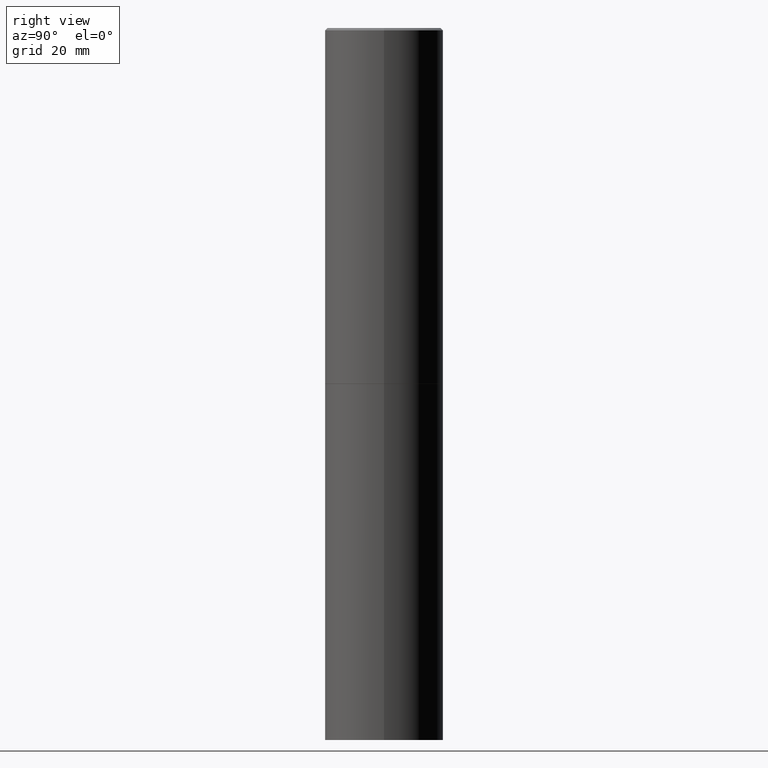
[diagram: clean part render]
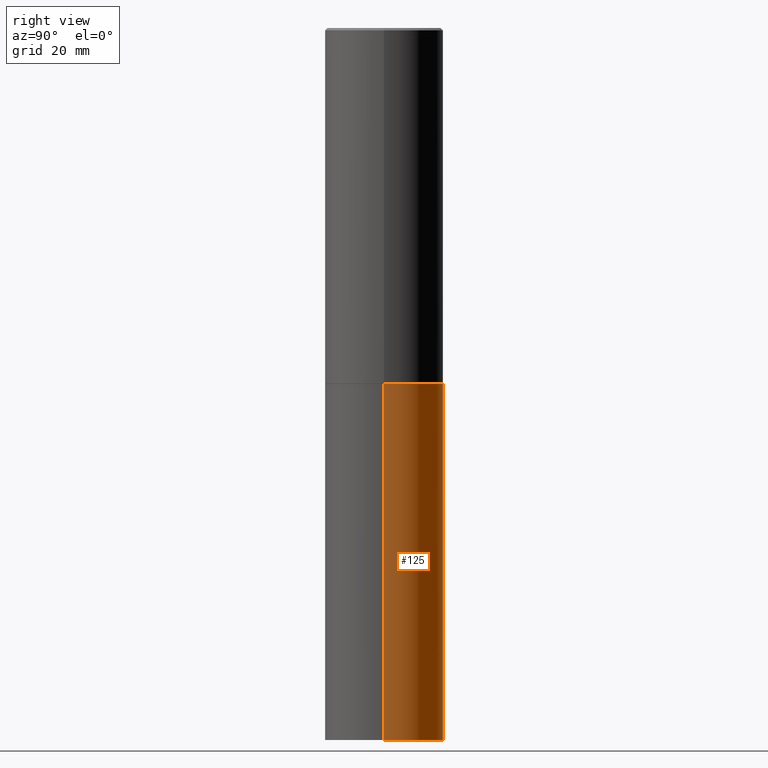
[diagram: same view with one face highlighted and labeled with its STEP entity id]
A machine part, right view. The second image highlights one B-rep face of the part: STEP entity #125.
In plain terms, the highlighted cylindrical surface (partial cylindrical patch) has radius 12.7 mm, axis along (-0, 0, 1).
Its self-contained STEP definition (entity closure, byte-faithful):
#8 = FACE_OUTER_BOUND ( 'NONE', #22, .T. ) ;
#12 = DIRECTION ( 'NONE',  ( -2.445468806185136877E-29, 3.491481338843145188E-15, 1.000000000000000000 ) ) ;
#22 = EDGE_LOOP ( 'NONE', ( #310, #163, #74, #138 ) ) ;
#29 = CARTESIAN_POINT ( 'NONE',  ( -0.5000000000000000000, -1.215895234599365439E-14, -6.000000000000000888 ) ) ;
#33 = CARTESIAN_POINT ( 'NONE',  ( 7.336406418555409790E-29, -1.047444401652943635E-14, -3.000000000000000444 ) ) ;
#35 = EDGE_CURVE ( 'NONE', #325, #143, #69, .T. ) ;
#39 = EDGE_CURVE ( 'NONE', #52, #143, #84, .T. ) ;
#40 = DIRECTION ( 'NONE',  ( 1.000000000000000000, -6.982962677686266711E-15, 4.876176775795935793E-29 ) ) ;
#49 = VECTOR ( 'NONE', #177, 39.37007874015748143 ) ;
#52 = VERTEX_POINT ( 'NONE', #29 ) ;
#61 = CIRCLE ( 'NONE', #116, 0.5000000000000000000 ) ;
#67 = CARTESIAN_POINT ( 'NONE',  ( 0.5000000000000000000, -3.491481338843133355E-15, 2.438088387897967896E-29 ) ) ;
#69 = CIRCLE ( 'NONE', #168, 0.5000000000000000000 ) ;
#74 = ORIENTED_EDGE ( 'NONE', *, *, #35, .F. ) ;
#84 = LINE ( 'NONE', #180, #49 ) ;
#85 = DIRECTION ( 'NONE',  ( 1.000000000000000000, -6.982962677686266711E-15, 0.000000000000000000 ) ) ;
#98 = CARTESIAN_POINT ( 'NONE',  ( -0.5000000000000000000, -1.215895234599365439E-14, -3.000000000000000444 ) ) ;
#99 = VECTOR ( 'NONE', #12, 39.37007874015748143 ) ;
#116 = AXIS2_PLACEMENT_3D ( 'NONE', #273, #358, #140 ) ;
#125 = ADVANCED_FACE ( 'NONE', ( #8 ), #129, .T. ) ;
#128 = EDGE_CURVE ( 'NONE', #199, #325, #320, .T. ) ;
#129 = CYLINDRICAL_SURFACE ( 'NONE', #260, 0.5000000000000000000 ) ;
#131 = DIRECTION ( 'NONE',  ( -2.445468806185136597E-29, 3.491481338843145583E-15, 1.000000000000000000 ) ) ;
#138 = ORIENTED_EDGE ( 'NONE', *, *, #128, .F. ) ;
#140 = DIRECTION ( 'NONE',  ( 1.000000000000000000, -6.982962677686262766E-15, 0.000000000000000000 ) ) ;
#143 = VERTEX_POINT ( 'NONE', #98 ) ;
#157 = CARTESIAN_POINT ( 'NONE',  ( 0.5000000000000000000, -2.444036937190200606E-14, -6.000000000000000888 ) ) ;
#163 = ORIENTED_EDGE ( 'NONE', *, *, #39, .T. ) ;
#168 = AXIS2_PLACEMENT_3D ( 'NONE', #33, #362, #85 ) ;
#177 = DIRECTION ( 'NONE',  ( -2.445468806185136877E-29, 3.491481338843145188E-15, 1.000000000000000000 ) ) ;
#180 = CARTESIAN_POINT ( 'NONE',  ( -0.5000000000000000000, 3.552713678800500929E-15, -2.459467545127452891E-29 ) ) ;
#199 = VERTEX_POINT ( 'NONE', #157 ) ;
#234 = CARTESIAN_POINT ( 'NONE',  ( 0.000000000000000000, 0.000000000000000000, 0.000000000000000000 ) ) ;
#260 = AXIS2_PLACEMENT_3D ( 'NONE', #234, #131, #40 ) ;
#273 = CARTESIAN_POINT ( 'NONE',  ( 1.467281283711081958E-28, -2.094888803305887271E-14, -6.000000000000000888 ) ) ;
#296 = CARTESIAN_POINT ( 'NONE',  ( 0.5000000000000000000, -1.396592535537257129E-14, -3.000000000000000444 ) ) ;
#310 = ORIENTED_EDGE ( 'NONE', *, *, #353, .T. ) ;
#320 = LINE ( 'NONE', #67, #99 ) ;
#325 = VERTEX_POINT ( 'NONE', #296 ) ;
#353 = EDGE_CURVE ( 'NONE', #199, #52, #61, .T. ) ;
#358 = DIRECTION ( 'NONE',  ( -2.445468806185136597E-29, 3.491481338843145583E-15, 1.000000000000000000 ) ) ;
#362 = DIRECTION ( 'NONE',  ( -2.445468806185136597E-29, 3.491481338843145583E-15, 1.000000000000000000 ) ) ;